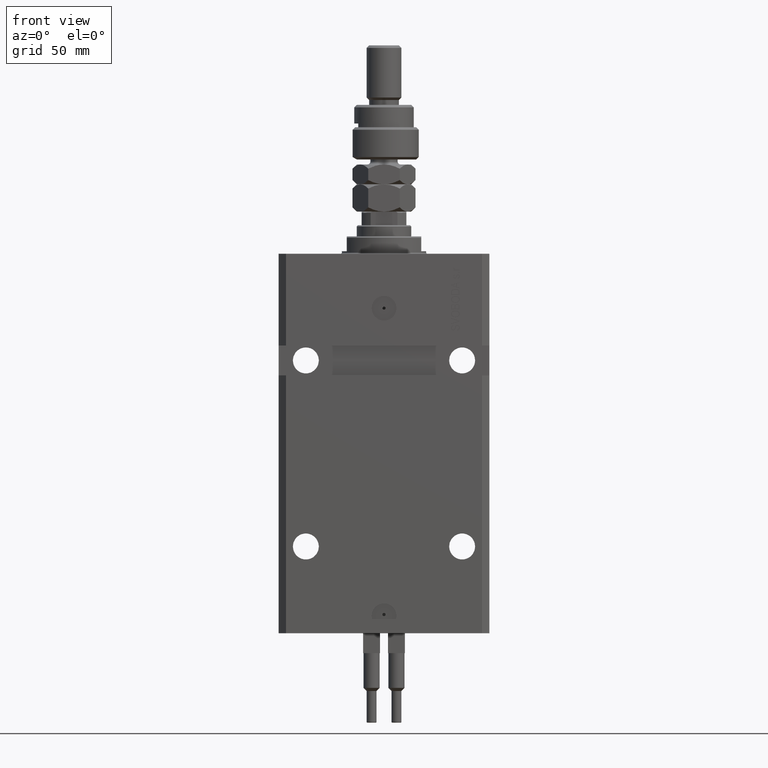
[diagram: clean part render]
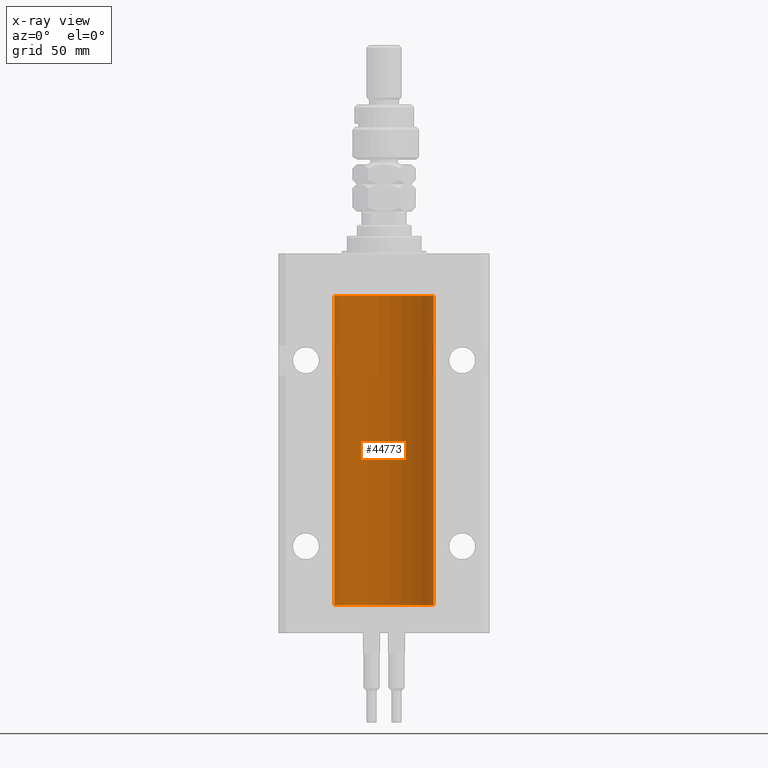
[diagram: x-ray — body ghosted, one internal face saturated and labeled with its STEP entity id]
A machine part, front view, then the same camera in x-ray: the body is ghosted and one INTERNAL B-rep face — a face not visible from any outside direction — is saturated and labeled: STEP entity #44773.
In plain terms, the highlighted cylindrical surface (partial cylindrical patch) has radius 20 mm, axis along (0, 0, 1).
Its self-contained STEP definition (entity closure, byte-faithful):
#754 = DIRECTION ( 'NONE',  ( 0.000000000000000000, 0.000000000000000000, 1.000000000000000000 ) ) ;
#1890 = CARTESIAN_POINT ( 'NONE',  ( 0.000000000000000000, 0.000000000000000000, -141.5999999999999943 ) ) ;
#2340 = VERTEX_POINT ( 'NONE', #46763 ) ;
#2905 = CARTESIAN_POINT ( 'NONE',  ( -19.99999999999999645, 0.08259581631026780002, -23.37500000000000000 ) ) ;
#3271 = VECTOR ( 'NONE', #42441, 1000.000000000000000 ) ;
#4376 = CARTESIAN_POINT ( 'NONE',  ( -20.00000000000000000, -2.867584836844214272E-15, -23.37500000000000000 ) ) ;
#4408 = CARTESIAN_POINT ( 'NONE',  ( -19.99023018003212471, 0.6250578794725458742, -139.1628480970496753 ) ) ;
#4758 = AXIS2_PLACEMENT_3D ( 'NONE', #16945, #8342, #48874 ) ;
#6381 = VERTEX_POINT ( 'NONE', #15588 ) ;
#6544 = AXIS2_PLACEMENT_3D ( 'NONE', #1890, #9988, #30123 ) ;
#7093 = CARTESIAN_POINT ( 'NONE',  ( -19.99947377218718714, 0.1636439183262877461, -23.39126364004656011 ) ) ;
#7564 = CARTESIAN_POINT ( 'NONE',  ( -19.99947377218718358, 0.1636439183262808073, -138.3912636400466170 ) ) ;
#7609 = CARTESIAN_POINT ( 'NONE',  ( -19.99638934703457593, 0.3843678041337688644, -23.50046362978100944 ) ) ;
#8025 = DIRECTION ( 'NONE',  ( -0.000000000000000000, -0.000000000000000000, 1.000000000000000000 ) ) ;
#8042 = LINE ( 'NONE', #23977, #36495 ) ;
#8044 = CARTESIAN_POINT ( 'NONE',  ( -20.00000000000000000, 2.449293598294706513E-15, -141.5999999999999943 ) ) ;
#8324 = CARTESIAN_POINT ( 'NONE',  ( -19.99638934703457238, 0.3843678041337506568, -138.5004636297809952 ) ) ;
#8342 = DIRECTION ( 'NONE',  ( 0.000000000000000000, 0.000000000000000000, 1.000000000000000000 ) ) ;
#8403 = EDGE_CURVE ( 'NONE', #46891, #9046, #8042, .T. ) ;
#9046 = VERTEX_POINT ( 'NONE', #46522 ) ;
#9446 = CARTESIAN_POINT ( 'NONE',  ( -20.00000000000000000, 2.449293598294706513E-15, -17.00000000000000000 ) ) ;
#9988 = DIRECTION ( 'NONE',  ( -0.000000000000000000, -0.000000000000000000, 1.000000000000000000 ) ) ;
#13138 = CARTESIAN_POINT ( 'NONE',  ( -20.00000000000000000, 2.449293598294706513E-15, -141.5999999999999943 ) ) ;
#14342 = CIRCLE ( 'NONE', #26015, 20.00000000000000000 ) ;
#15588 = CARTESIAN_POINT ( 'NONE',  ( -20.00000000000000000, -1.756252550797319649E-14, -138.3749999999999716 ) ) ;
#15731 = B_SPLINE_CURVE_WITH_KNOTS ( 'NONE', 3,
 ( #4376, #2905, #7093, #38986, #7609, #19117, #51290, #31382, #46867, #30874, #47375, #31132 ),
 .UNSPECIFIED., .F., .F.,
 ( 4, 2, 2, 2, 2, 4 ),
 ( 5.848927291235706941E-19, 0.0002442693137305304075, 0.0004885386274610601645, 0.0009770772549221123059, 0.001465615882383164339, 0.001954154509844215938 ),
 .UNSPECIFIED. ) ;
#16347 = ORIENTED_EDGE ( 'NONE', *, *, #35885, .F. ) ;
#16713 = DIRECTION ( 'NONE',  ( 1.000000000000000000, 0.000000000000000000, 0.000000000000000000 ) ) ;
#16945 = CARTESIAN_POINT ( 'NONE',  ( 0.000000000000000000, 0.000000000000000000, -17.00000000000000000 ) ) ;
#18643 = LINE ( 'NONE', #50815, #3271 ) ;
#19117 = CARTESIAN_POINT ( 'NONE',  ( -19.99256581701871482, 0.5573276956902001311, -23.67348565770948809 ) ) ;
#19821 = LINE ( 'NONE', #8044, #29189 ) ;
#20346 = CARTESIAN_POINT ( 'NONE',  ( -19.99769349528941120, 0.3253804398728610270, -139.5585582072767750 ) ) ;
#20556 = LINE ( 'NONE', #27883, #30964 ) ;
#21005 = EDGE_CURVE ( 'NONE', #21206, #34438, #15731, .T. ) ;
#21206 = VERTEX_POINT ( 'NONE', #34188 ) ;
#23387 = EDGE_LOOP ( 'NONE', ( #38300, #36432, #29874, #47253, #32642, #44932, #16347, #44020 ) ) ;
#23977 = CARTESIAN_POINT ( 'NONE',  ( -20.00000000000000000, 2.449293598294706513E-15, -141.5999999999999943 ) ) ;
#24267 = CARTESIAN_POINT ( 'NONE',  ( -19.99256581701871482, 0.5573276956901845880, -138.6734856577095059 ) ) ;
#25381 = EDGE_CURVE ( 'NONE', #47337, #37830, #49041, .T. ) ;
#25888 = CARTESIAN_POINT ( 'NONE',  ( 20.00000000000000000, 0.000000000000000000, -17.00000000000000000 ) ) ;
#26015 = AXIS2_PLACEMENT_3D ( 'NONE', #31896, #754, #16713 ) ;
#27883 = CARTESIAN_POINT ( 'NONE',  ( -20.00000000000000000, 2.449293598294706513E-15, -141.5999999999999943 ) ) ;
#29189 = VECTOR ( 'NONE', #51226, 1000.000000000000000 ) ;
#29848 = CYLINDRICAL_SURFACE ( 'NONE', #6544, 20.00000000000000000 ) ;
#29874 = ORIENTED_EDGE ( 'NONE', *, *, #47092, .T. ) ;
#30123 = DIRECTION ( 'NONE',  ( 1.000000000000000000, 0.000000000000000000, 0.000000000000000000 ) ) ;
#30874 = CARTESIAN_POINT ( 'NONE',  ( -19.99769349528941120, 0.3253804398728645242, -24.55855820727680339 ) ) ;
#30964 = VECTOR ( 'NONE', #8025, 1000.000000000000000 ) ;
#31132 = CARTESIAN_POINT ( 'NONE',  ( -20.00000000000010303, 3.580159282543646009E-13, -24.62500000000332889 ) ) ;
#31382 = CARTESIAN_POINT ( 'NONE',  ( -19.99023018003212471, 0.6250578794725500931, -24.16284809704970371 ) ) ;
#31896 = CARTESIAN_POINT ( 'NONE',  ( 0.000000000000000000, 0.000000000000000000, -141.5999999999999943 ) ) ;
#32100 = CARTESIAN_POINT ( 'NONE',  ( -20.00000000000000000, -1.756252550797319649E-14, -138.3749999999999716 ) ) ;
#32642 = ORIENTED_EDGE ( 'NONE', *, *, #34300, .F. ) ;
#33251 = FACE_OUTER_BOUND ( 'NONE', #23387, .T. ) ;
#34188 = CARTESIAN_POINT ( 'NONE',  ( -20.00000000000000000, -2.867584836844214272E-15, -23.37500000000000000 ) ) ;
#34300 = EDGE_CURVE ( 'NONE', #21206, #37830, #19821, .T. ) ;
#34438 = VERTEX_POINT ( 'NONE', #44658 ) ;
#34984 = DIRECTION ( 'NONE',  ( -0.000000000000000000, -0.000000000000000000, 1.000000000000000000 ) ) ;
#35885 = EDGE_CURVE ( 'NONE', #6381, #34438, #20556, .T. ) ;
#36287 = CARTESIAN_POINT ( 'NONE',  ( -19.99999999999999645, 0.1631688615953307553, -139.6249999999998010 ) ) ;
#36432 = ORIENTED_EDGE ( 'NONE', *, *, #37972, .F. ) ;
#36495 = VECTOR ( 'NONE', #34984, 1000.000000000000000 ) ;
#37830 = VERTEX_POINT ( 'NONE', #9446 ) ;
#37972 = EDGE_CURVE ( 'NONE', #2340, #46891, #14342, .T. ) ;
#38300 = ORIENTED_EDGE ( 'NONE', *, *, #8403, .F. ) ;
#38986 = CARTESIAN_POINT ( 'NONE',  ( -19.99766197842594906, 0.3150331617867667688, -23.45402070102505476 ) ) ;
#39462 = CARTESIAN_POINT ( 'NONE',  ( -19.99253506710755346, 0.5587120480776690545, -139.3251162083025463 ) ) ;
#40234 = CARTESIAN_POINT ( 'NONE',  ( -19.99023380173166231, 0.6249420416828387337, -138.8367079305639606 ) ) ;
#42037 = EDGE_CURVE ( 'NONE', #6381, #9046, #42805, .T. ) ;
#42441 = DIRECTION ( 'NONE',  ( -0.000000000000000000, -0.000000000000000000, 1.000000000000000000 ) ) ;
#42805 = B_SPLINE_CURVE_WITH_KNOTS ( 'NONE', 3,
 ( #32100, #43398, #7564, #44166, #8324, #24267, #40234, #4408, #39462, #20346, #36287, #51498 ),
 .UNSPECIFIED., .F., .F.,
 ( 4, 2, 2, 2, 2, 4 ),
 ( 5.247116368830962784E-19, 0.0002442693137305545852, 0.0004885386274611086283, 0.0009770772549221576255, 0.001465615882383206840, 0.001954154509844256270 ),
 .UNSPECIFIED. ) ;
#43398 = CARTESIAN_POINT ( 'NONE',  ( -20.00000000000000000, 0.08259581631025542103, -138.3749999999999716 ) ) ;
#44020 = ORIENTED_EDGE ( 'NONE', *, *, #42037, .T. ) ;
#44166 = CARTESIAN_POINT ( 'NONE',  ( -19.99766197842594195, 0.3150331617867615508, -138.4540207010250299 ) ) ;
#44658 = CARTESIAN_POINT ( 'NONE',  ( -20.00000000000010303, 3.580159282543646009E-13, -24.62500000000332889 ) ) ;
#44773 = ADVANCED_FACE ( 'NONE', ( #33251 ), #29848, .F. ) ;
#44932 = ORIENTED_EDGE ( 'NONE', *, *, #21005, .T. ) ;
#46522 = CARTESIAN_POINT ( 'NONE',  ( -20.00000000000010303, 3.580159249456421507E-13, -139.6250000000033253 ) ) ;
#46763 = CARTESIAN_POINT ( 'NONE',  ( 20.00000000000000000, 0.000000000000000000, -141.5999999999999943 ) ) ;
#46867 = CARTESIAN_POINT ( 'NONE',  ( -19.99253506710754991, 0.5587120480776751608, -24.32511620830248589 ) ) ;
#46891 = VERTEX_POINT ( 'NONE', #13138 ) ;
#47092 = EDGE_CURVE ( 'NONE', #2340, #47337, #18643, .T. ) ;
#47253 = ORIENTED_EDGE ( 'NONE', *, *, #25381, .T. ) ;
#47337 = VERTEX_POINT ( 'NONE', #25888 ) ;
#47375 = CARTESIAN_POINT ( 'NONE',  ( -20.00000000000000000, 0.1631688615953320320, -24.62499999999985434 ) ) ;
#48874 = DIRECTION ( 'NONE',  ( 1.000000000000000000, 0.000000000000000000, 0.000000000000000000 ) ) ;
#49041 = CIRCLE ( 'NONE', #4758, 20.00000000000000000 ) ;
#50815 = CARTESIAN_POINT ( 'NONE',  ( 20.00000000000000000, 0.000000000000000000, -141.5999999999999943 ) ) ;
#51226 = DIRECTION ( 'NONE',  ( -0.000000000000000000, -0.000000000000000000, 1.000000000000000000 ) ) ;
#51290 = CARTESIAN_POINT ( 'NONE',  ( -19.99023380173166231, 0.6249420416828462832, -23.83670793056396064 ) ) ;
#51498 = CARTESIAN_POINT ( 'NONE',  ( -20.00000000000010303, 3.580159249456421507E-13, -139.6250000000033253 ) ) ;